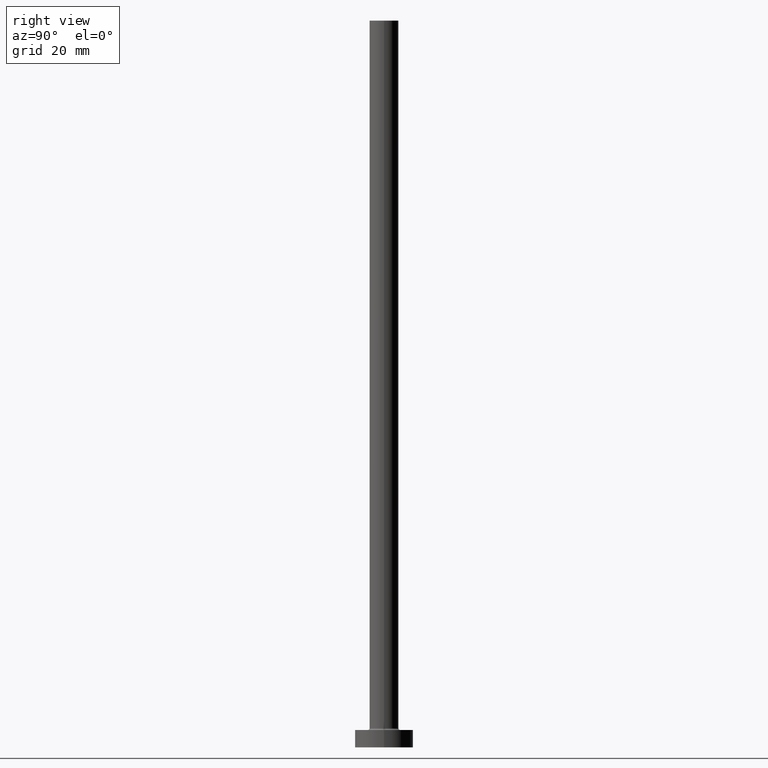
[diagram: clean part render]
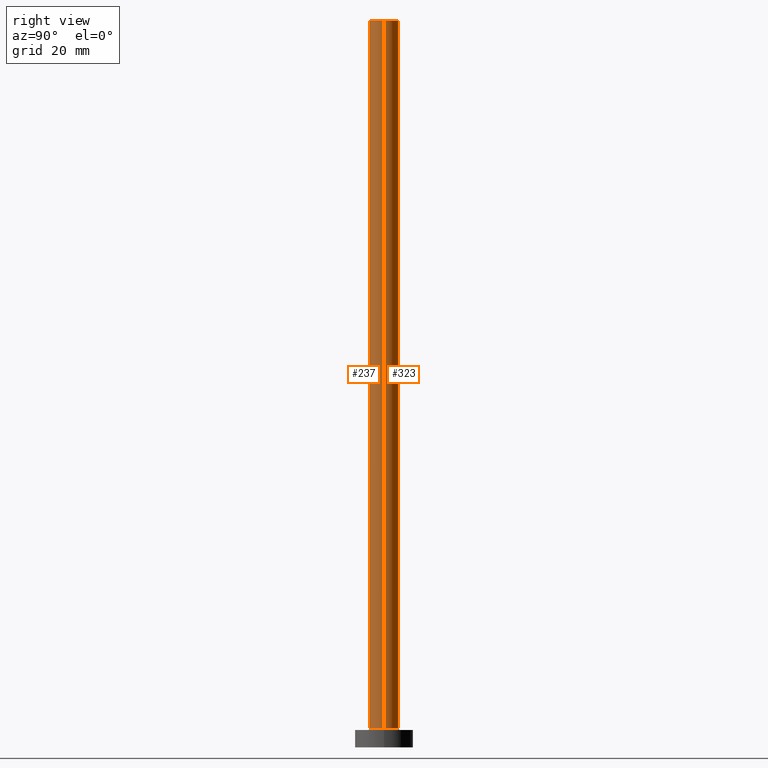
[diagram: same view with one multi-face feature highlighted, each face labeled with its STEP entity id]
A machine part, right view. The highlighted faces form ONE feature: a constant-radius fillet chain: 2 tangent blend faces with common blend radius 2.5 mm. The faces share edges in the B-rep.
Their STEP definitions:
[1] entity #237 (Cylinder):
#1 = LINE ( 'NONE', #144, #115 ) ;
#22 = EDGE_CURVE ( 'NONE', #268, #437, #196, .T. ) ;
#31 = DIRECTION ( 'NONE',  ( 1.000000000000000000, 0.000000000000000000, 0.000000000000000000 ) ) ;
#69 = DIRECTION ( 'NONE',  ( -0.000000000000000000, -0.000000000000000000, -1.000000000000000000 ) ) ;
#106 = AXIS2_PLACEMENT_3D ( 'NONE', #459, #69, #276 ) ;
#115 = VECTOR ( 'NONE', #249, 1000.000000000000000 ) ;
#128 = AXIS2_PLACEMENT_3D ( 'NONE', #190, #404, #159 ) ;
#139 = VERTEX_POINT ( 'NONE', #346 ) ;
#143 = EDGE_LOOP ( 'NONE', ( #434, #445, #402, #297 ) ) ;
#144 = CARTESIAN_POINT ( 'NONE',  ( 2.500000000000000000, 3.061616997868382648E-16, 125.0000000000000000 ) ) ;
#147 = CIRCLE ( 'NONE', #310, 2.500000000000000000 ) ;
#154 = CARTESIAN_POINT ( 'NONE',  ( -2.500000000000000000, 0.000000000000000000, 125.0000000000000000 ) ) ;
#159 = DIRECTION ( 'NONE',  ( 1.000000000000000000, 0.000000000000000000, 0.000000000000000000 ) ) ;
#178 = VECTOR ( 'NONE', #259, 1000.000000000000000 ) ;
#190 = CARTESIAN_POINT ( 'NONE',  ( 0.000000000000000000, 0.000000000000000000, 125.0000000000000000 ) ) ;
#194 = CIRCLE ( 'NONE', #128, 2.500000000000000000 ) ;
#195 = CARTESIAN_POINT ( 'NONE',  ( 2.500000000000000000, 3.061616997868382648E-16, 3.299999999999997158 ) ) ;
#196 = LINE ( 'NONE', #154, #178 ) ;
#205 = CARTESIAN_POINT ( 'NONE',  ( 0.000000000000000000, 0.000000000000000000, 3.299999999999997158 ) ) ;
#206 = CARTESIAN_POINT ( 'NONE',  ( -2.500000000000000000, 0.000000000000000000, 125.0000000000000000 ) ) ;
#237 = ADVANCED_FACE ( 'NONE', ( #313 ), #456, .T. ) ;
#249 = DIRECTION ( 'NONE',  ( -0.000000000000000000, -0.000000000000000000, -1.000000000000000000 ) ) ;
#251 = EDGE_CURVE ( 'NONE', #437, #461, #147, .T. ) ;
#259 = DIRECTION ( 'NONE',  ( -0.000000000000000000, -0.000000000000000000, -1.000000000000000000 ) ) ;
#268 = VERTEX_POINT ( 'NONE', #206 ) ;
#276 = DIRECTION ( 'NONE',  ( -1.000000000000000000, 0.000000000000000000, 0.000000000000000000 ) ) ;
#297 = ORIENTED_EDGE ( 'NONE', *, *, #251, .T. ) ;
#310 = AXIS2_PLACEMENT_3D ( 'NONE', #205, #353, #31 ) ;
#313 = FACE_OUTER_BOUND ( 'NONE', #143, .T. ) ;
#340 = EDGE_CURVE ( 'NONE', #139, #461, #1, .T. ) ;
#346 = CARTESIAN_POINT ( 'NONE',  ( 2.500000000000000000, 3.061616997868382648E-16, 125.0000000000000000 ) ) ;
#353 = DIRECTION ( 'NONE',  ( 0.000000000000000000, 0.000000000000000000, 1.000000000000000000 ) ) ;
#368 = CARTESIAN_POINT ( 'NONE',  ( -2.500000000000000000, 0.000000000000000000, 3.299999999999997158 ) ) ;
#402 = ORIENTED_EDGE ( 'NONE', *, *, #22, .T. ) ;
#404 = DIRECTION ( 'NONE',  ( 0.000000000000000000, 0.000000000000000000, 1.000000000000000000 ) ) ;
#434 = ORIENTED_EDGE ( 'NONE', *, *, #340, .F. ) ;
#437 = VERTEX_POINT ( 'NONE', #368 ) ;
#445 = ORIENTED_EDGE ( 'NONE', *, *, #455, .F. ) ;
#455 = EDGE_CURVE ( 'NONE', #268, #139, #194, .T. ) ;
#456 = CYLINDRICAL_SURFACE ( 'NONE', #106, 2.500000000000000000 ) ;
#459 = CARTESIAN_POINT ( 'NONE',  ( 0.000000000000000000, 0.000000000000000000, 125.0000000000000000 ) ) ;
#461 = VERTEX_POINT ( 'NONE', #195 ) ;
[2] entity #323 (Cylinder):
#1 = LINE ( 'NONE', #144, #115 ) ;
#13 = EDGE_LOOP ( 'NONE', ( #50, #319, #366, #292 ) ) ;
#14 = AXIS2_PLACEMENT_3D ( 'NONE', #122, #261, #376 ) ;
#22 = EDGE_CURVE ( 'NONE', #268, #437, #196, .T. ) ;
#41 = EDGE_CURVE ( 'NONE', #139, #268, #224, .T. ) ;
#50 = ORIENTED_EDGE ( 'NONE', *, *, #41, .F. ) ;
#65 = DIRECTION ( 'NONE',  ( 1.000000000000000000, 0.000000000000000000, 0.000000000000000000 ) ) ;
#108 = DIRECTION ( 'NONE',  ( -1.000000000000000000, 0.000000000000000000, 0.000000000000000000 ) ) ;
#115 = VECTOR ( 'NONE', #249, 1000.000000000000000 ) ;
#122 = CARTESIAN_POINT ( 'NONE',  ( 0.000000000000000000, 0.000000000000000000, 125.0000000000000000 ) ) ;
#139 = VERTEX_POINT ( 'NONE', #346 ) ;
#144 = CARTESIAN_POINT ( 'NONE',  ( 2.500000000000000000, 3.061616997868382648E-16, 125.0000000000000000 ) ) ;
#154 = CARTESIAN_POINT ( 'NONE',  ( -2.500000000000000000, 0.000000000000000000, 125.0000000000000000 ) ) ;
#166 = EDGE_CURVE ( 'NONE', #461, #437, #244, .T. ) ;
#169 = AXIS2_PLACEMENT_3D ( 'NONE', #272, #348, #65 ) ;
#178 = VECTOR ( 'NONE', #259, 1000.000000000000000 ) ;
#195 = CARTESIAN_POINT ( 'NONE',  ( 2.500000000000000000, 3.061616997868382648E-16, 3.299999999999997158 ) ) ;
#196 = LINE ( 'NONE', #154, #178 ) ;
#206 = CARTESIAN_POINT ( 'NONE',  ( -2.500000000000000000, 0.000000000000000000, 125.0000000000000000 ) ) ;
#212 = CARTESIAN_POINT ( 'NONE',  ( 0.000000000000000000, 0.000000000000000000, 125.0000000000000000 ) ) ;
#224 = CIRCLE ( 'NONE', #14, 2.500000000000000000 ) ;
#244 = CIRCLE ( 'NONE', #169, 2.500000000000000000 ) ;
#249 = DIRECTION ( 'NONE',  ( -0.000000000000000000, -0.000000000000000000, -1.000000000000000000 ) ) ;
#259 = DIRECTION ( 'NONE',  ( -0.000000000000000000, -0.000000000000000000, -1.000000000000000000 ) ) ;
#261 = DIRECTION ( 'NONE',  ( 0.000000000000000000, 0.000000000000000000, 1.000000000000000000 ) ) ;
#268 = VERTEX_POINT ( 'NONE', #206 ) ;
#272 = CARTESIAN_POINT ( 'NONE',  ( 0.000000000000000000, 0.000000000000000000, 3.299999999999997158 ) ) ;
#283 = DIRECTION ( 'NONE',  ( -0.000000000000000000, -0.000000000000000000, -1.000000000000000000 ) ) ;
#292 = ORIENTED_EDGE ( 'NONE', *, *, #22, .F. ) ;
#319 = ORIENTED_EDGE ( 'NONE', *, *, #340, .T. ) ;
#323 = ADVANCED_FACE ( 'NONE', ( #324 ), #357, .T. ) ;
#324 = FACE_OUTER_BOUND ( 'NONE', #13, .T. ) ;
#340 = EDGE_CURVE ( 'NONE', #139, #461, #1, .T. ) ;
#346 = CARTESIAN_POINT ( 'NONE',  ( 2.500000000000000000, 3.061616997868382648E-16, 125.0000000000000000 ) ) ;
#348 = DIRECTION ( 'NONE',  ( 0.000000000000000000, 0.000000000000000000, 1.000000000000000000 ) ) ;
#357 = CYLINDRICAL_SURFACE ( 'NONE', #365, 2.500000000000000000 ) ;
#365 = AXIS2_PLACEMENT_3D ( 'NONE', #212, #283, #108 ) ;
#366 = ORIENTED_EDGE ( 'NONE', *, *, #166, .T. ) ;
#368 = CARTESIAN_POINT ( 'NONE',  ( -2.500000000000000000, 0.000000000000000000, 3.299999999999997158 ) ) ;
#376 = DIRECTION ( 'NONE',  ( 1.000000000000000000, 0.000000000000000000, 0.000000000000000000 ) ) ;
#437 = VERTEX_POINT ( 'NONE', #368 ) ;
#461 = VERTEX_POINT ( 'NONE', #195 ) ;